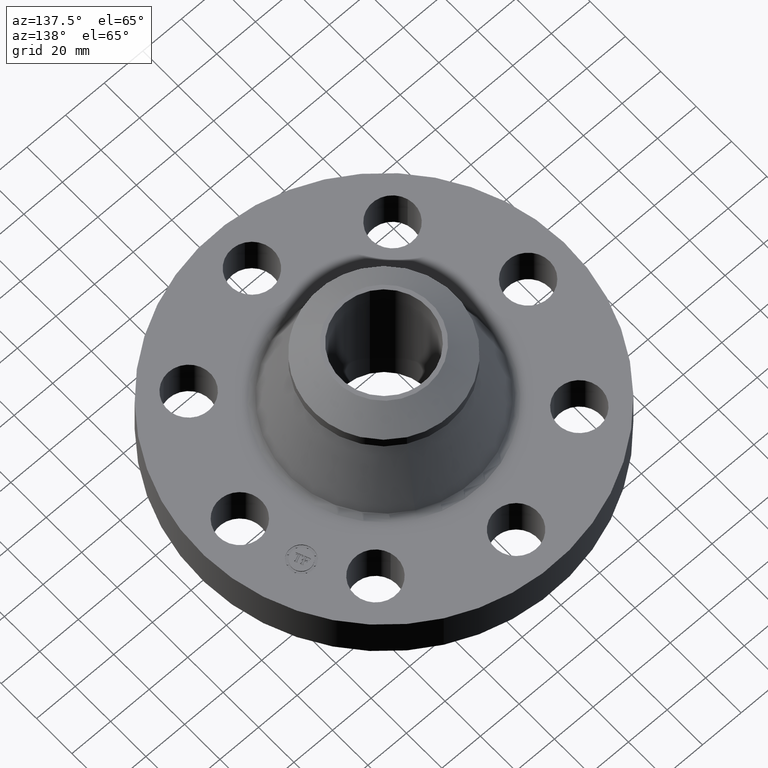
[diagram: clean part render]
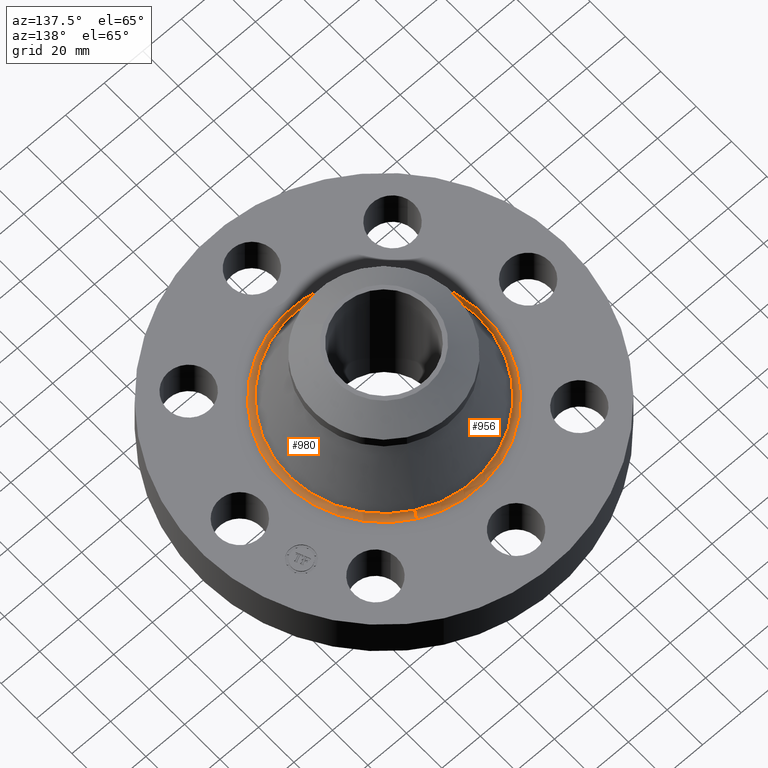
[diagram: same view with one multi-face feature highlighted, each face labeled with its STEP entity id]
A machine part, auxiliary view. The highlighted faces form ONE feature: a constant-radius fillet chain: 2 tangent blend faces with common blend radius 3.048 mm. The faces share edges in the B-rep.
Their STEP definitions:
[1] entity #956 (Torus):
#344=AXIS2_PLACEMENT_3D('Circle Axis2P3D',#342,#343,$) ;
#929=AXIS2_PLACEMENT_3D('Torus Axis2P3D',#926,#927,#928) ;
#933=AXIS2_PLACEMENT_3D('Circle Axis2P3D',#931,#932,$) ;
#940=AXIS2_PLACEMENT_3D('Circle Axis2P3D',#938,#939,$) ;
#947=AXIS2_PLACEMENT_3D('Circle Axis2P3D',#945,#946,$) ;
#342=CARTESIAN_POINT('Axis2P3D Location',(1.28121485424E-011,-2.36649894781E-011,0.940000000004)) ;
#346=CARTESIAN_POINT('Vertex',(-0.984191432936,-1.8015503338,0.94)) ;
#348=CARTESIAN_POINT('Vertex',(0.98419143294,1.80155033381,0.94)) ;
#926=CARTESIAN_POINT('Axis2P3D Location',(0.,0.,1.06)) ;
#931=CARTESIAN_POINT('Axis2P3D Location',(-0.984191432937,-1.8015503338,1.06)) ;
#935=CARTESIAN_POINT('Vertex',(-0.930393049896,-1.7030730542,1.01747989436)) ;
#938=CARTESIAN_POINT('Axis2P3D Location',(0.,0.,1.01747989436)) ;
#942=CARTESIAN_POINT('Vertex',(0.930393049896,1.7030730542,1.01747989436)) ;
#945=CARTESIAN_POINT('Axis2P3D Location',(0.984191432937,1.8015503338,1.06)) ;
#343=DIRECTION('Axis2P3D Direction',(0.,0.,-0.0393700787402)) ;
#927=DIRECTION('Axis2P3D Direction',(0.,0.,-0.0393700787402)) ;
#928=DIRECTION('Axis2P3D XDirection',(-0.0188750212049,-0.0345504945626,0.)) ;
#932=DIRECTION('Axis2P3D Direction',(0.0345504945626,-0.0188750212049,0.)) ;
#939=DIRECTION('Axis2P3D Direction',(-0.,0.,-0.0393700787402)) ;
#946=DIRECTION('Axis2P3D Direction',(-0.0345504945626,0.0188750212049,0.)) ;
#951=ORIENTED_EDGE('',*,*,#350,.F.) ;
#952=ORIENTED_EDGE('',*,*,#937,.T.) ;
#953=ORIENTED_EDGE('',*,*,#944,.T.) ;
#954=ORIENTED_EDGE('',*,*,#949,.F.) ;
#956=ADVANCED_FACE('PartBody',(#955),#930,.F.) ;
#345=CIRCLE('generated circle',#344,2.05285566513) ;
#934=CIRCLE('generated circle',#933,0.12) ;
#941=CIRCLE('generated circle',#940,1.94064140305) ;
#948=CIRCLE('generated circle',#947,0.12) ;
#930=TOROIDAL_SURFACE('homeo Torus',#929,2.05285566514,0.12) ;
#350=EDGE_CURVE('',#347,#349,#345,.T.) ;
#937=EDGE_CURVE('',#347,#936,#934,.T.) ;
#944=EDGE_CURVE('',#936,#943,#941,.T.) ;
#949=EDGE_CURVE('',#349,#943,#948,.T.) ;
#950=EDGE_LOOP('',(#951,#952,#953,#954)) ;
#955=FACE_OUTER_BOUND('',#950,.T.) ;
#347=VERTEX_POINT('',#346) ;
#349=VERTEX_POINT('',#348) ;
#936=VERTEX_POINT('',#935) ;
#943=VERTEX_POINT('',#942) ;
[2] entity #980 (Torus):
#353=AXIS2_PLACEMENT_3D('Circle Axis2P3D',#351,#352,$) ;
#933=AXIS2_PLACEMENT_3D('Circle Axis2P3D',#931,#932,$) ;
#947=AXIS2_PLACEMENT_3D('Circle Axis2P3D',#945,#946,$) ;
#967=AXIS2_PLACEMENT_3D('Torus Axis2P3D',#964,#965,#966) ;
#971=AXIS2_PLACEMENT_3D('Circle Axis2P3D',#969,#970,$) ;
#346=CARTESIAN_POINT('Vertex',(-0.984191432936,-1.8015503338,0.94)) ;
#348=CARTESIAN_POINT('Vertex',(0.98419143294,1.80155033381,0.94)) ;
#351=CARTESIAN_POINT('Axis2P3D Location',(-1.28121485424E-011,-9.66673810115E-012,0.940000000004)) ;
#931=CARTESIAN_POINT('Axis2P3D Location',(-0.984191432937,-1.8015503338,1.06)) ;
#935=CARTESIAN_POINT('Vertex',(-0.930393049896,-1.7030730542,1.01747989436)) ;
#942=CARTESIAN_POINT('Vertex',(0.930393049896,1.7030730542,1.01747989436)) ;
#945=CARTESIAN_POINT('Axis2P3D Location',(0.984191432937,1.8015503338,1.06)) ;
#964=CARTESIAN_POINT('Axis2P3D Location',(0.,0.,1.06)) ;
#969=CARTESIAN_POINT('Axis2P3D Location',(0.,0.,1.01747989436)) ;
#352=DIRECTION('Axis2P3D Direction',(0.,0.,-0.0393700787402)) ;
#932=DIRECTION('Axis2P3D Direction',(0.0345504945626,-0.0188750212049,0.)) ;
#946=DIRECTION('Axis2P3D Direction',(-0.0345504945626,0.0188750212049,0.)) ;
#965=DIRECTION('Axis2P3D Direction',(0.,0.,-0.0393700787402)) ;
#966=DIRECTION('Axis2P3D XDirection',(0.0188750212049,0.0345504945626,0.)) ;
#970=DIRECTION('Axis2P3D Direction',(-0.,0.,-0.0393700787402)) ;
#975=ORIENTED_EDGE('',*,*,#355,.F.) ;
#976=ORIENTED_EDGE('',*,*,#949,.T.) ;
#977=ORIENTED_EDGE('',*,*,#973,.T.) ;
#978=ORIENTED_EDGE('',*,*,#937,.F.) ;
#980=ADVANCED_FACE('PartBody',(#979),#968,.F.) ;
#354=CIRCLE('generated circle',#353,2.05285566513) ;
#934=CIRCLE('generated circle',#933,0.12) ;
#948=CIRCLE('generated circle',#947,0.12) ;
#972=CIRCLE('generated circle',#971,1.94064140305) ;
#968=TOROIDAL_SURFACE('homeo Torus',#967,2.05285566514,0.12) ;
#355=EDGE_CURVE('',#349,#347,#354,.T.) ;
#937=EDGE_CURVE('',#347,#936,#934,.T.) ;
#949=EDGE_CURVE('',#349,#943,#948,.T.) ;
#973=EDGE_CURVE('',#943,#936,#972,.T.) ;
#974=EDGE_LOOP('',(#975,#976,#977,#978)) ;
#979=FACE_OUTER_BOUND('',#974,.T.) ;
#347=VERTEX_POINT('',#346) ;
#349=VERTEX_POINT('',#348) ;
#936=VERTEX_POINT('',#935) ;
#943=VERTEX_POINT('',#942) ;